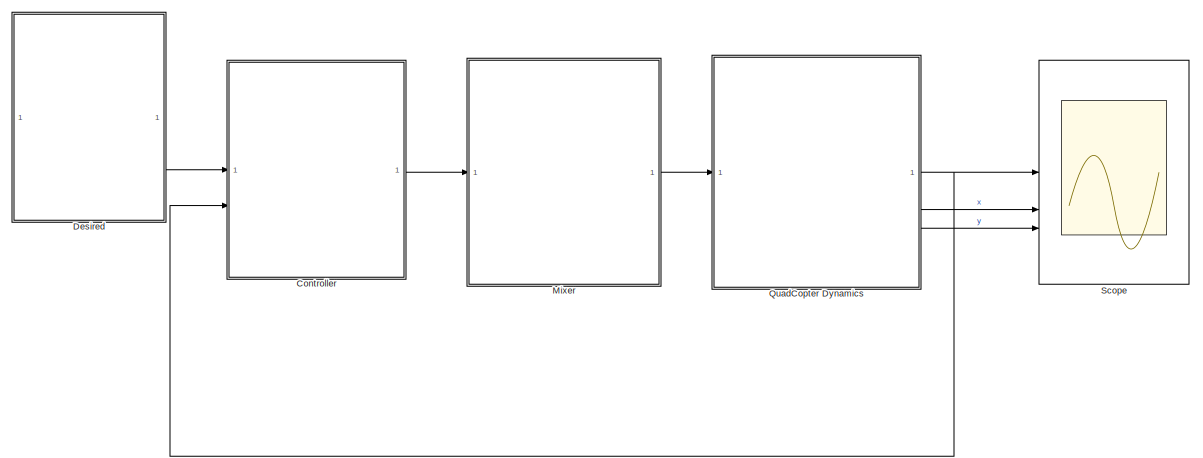
[diagram: root canvas - part 1/2, most of the canvas]
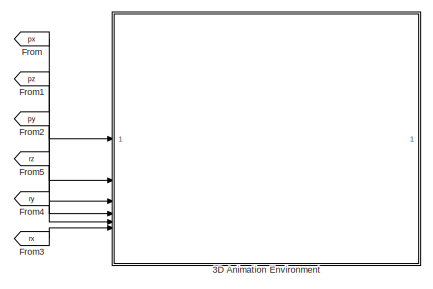
[diagram: root canvas - part 2/2, middle right region]
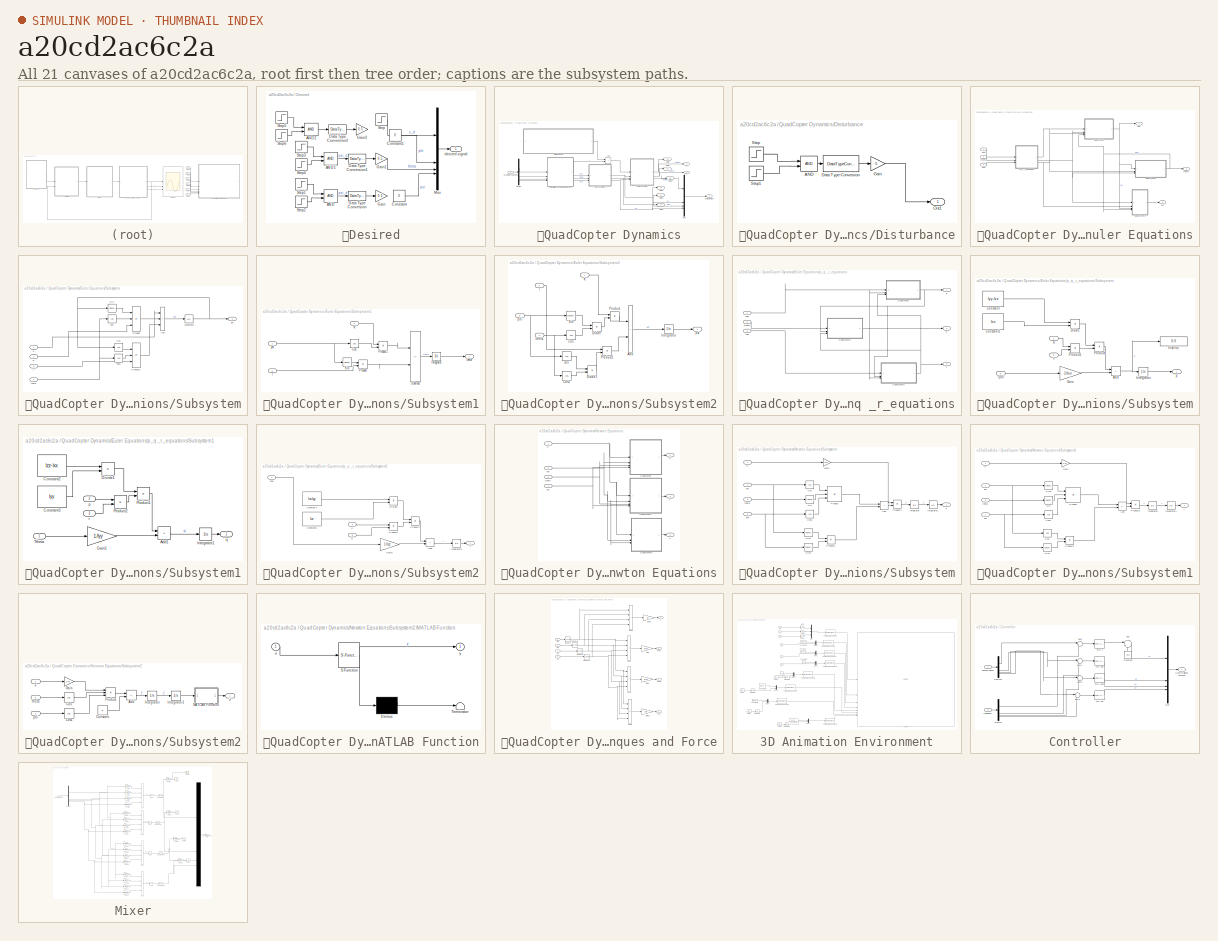
[diagram: thumbnail index - all 21 canvases of the model, root first then tree order]
MODEL slx_a20cd2ac6c2a
KIND model
CONFIG AbsTol = 1e-6
CONFIG EnableMultiTasking = off
CONFIG FixedStep = auto
CONFIG MaxStep = auto
CONFIG MinStep = auto
CONFIG RelTol = 1e-6
CONFIG SampleTimeConstraint = Unconstrained
CONFIG SolverName = ode23t
CONFIG StartTime = 0
CONFIG StopTime = 25
BLOCK [SubSystem] 	Desired
BLOCK [Logic] 	Desired/AND
  AllPortsSameDT = off
  Commented = on
  IconShape = distinctive
  OutDataTypeStr = boolean
BLOCK [Logic] 	Desired/AND1
  AllPortsSameDT = off
  IconShape = distinctive
  OutDataTypeStr = boolean
BLOCK [Logic] 	Desired/AND2
  AllPortsSameDT = off
  IconShape = distinctive
  OutDataTypeStr = boolean
BLOCK [Constant] 	Desired/Constant
  Value = 0
BLOCK [Constant] 	Desired/Constant1
  Value = 0
BLOCK [DataTypeConversion] 	Desired/Data Type Conversion
  Commented = on
  RndMeth = Floor
  SaturateOnIntegerOverflow = off
BLOCK [DataTypeConversion] 	Desired/Data Type Conversion1
  RndMeth = Floor
  SaturateOnIntegerOverflow = off
BLOCK [DataTypeConversion] 	Desired/Data Type Conversion2
  RndMeth = Floor
  SaturateOnIntegerOverflow = off
BLOCK [Gain] 	Desired/Gain
  Commented = on
  Gain = 0.5
BLOCK [Gain] 	Desired/Gain1
  Gain = 0.5
BLOCK [Gain] 	Desired/Gain2
  Gain = 0.5
BLOCK [Mux] 	Desired/Mux
  DisplayOption = bar
BLOCK [Step] 	Desired/Step
  After = -5
  SampleTime = 0
  Time = 0
BLOCK [Step] 	Desired/Step1
  Commented = on
  SampleTime = 0
  Time = 4
BLOCK [Step] 	Desired/Step2
  After = 0
  Before = 1
  Commented = on
  SampleTime = 0
  Time = 8
BLOCK [Step] 	Desired/Step3
  SampleTime = 0
  Time = 8
BLOCK [Step] 	Desired/Step4
  After = 0
  Before = 1
  SampleTime = 0
  Time = 9
BLOCK [Step] 	Desired/Step5
  SampleTime = 0
  Time = 10
BLOCK [Step] 	Desired/Step6
  After = 0
  Before = 1
  SampleTime = 0
  Time = 11
BLOCK [Outport] 	Desired/desired signal
BLOCK [SubSystem] 	QuadCopter Dynamics
BLOCK [Sum] 	QuadCopter Dynamics/Add
  IconShape = rectangular
BLOCK [Demux] 	QuadCopter Dynamics/Demux
BLOCK [SubSystem] 	QuadCopter Dynamics/Disturbance
BLOCK [Logic] 	QuadCopter Dynamics/Disturbance/AND
  AllPortsSameDT = off
  IconShape = distinctive
  OutDataTypeStr = boolean
BLOCK [DataTypeConversion] 	QuadCopter Dynamics/Disturbance/Data Type Conversion
  RndMeth = Floor
  SaturateOnIntegerOverflow = off
BLOCK [Gain] 	QuadCopter Dynamics/Disturbance/Gain
  Gain = 5
BLOCK [Outport] 	QuadCopter Dynamics/Disturbance/Out1
BLOCK [Step] 	QuadCopter Dynamics/Disturbance/Step
  SampleTime = 0
  Time = 10
BLOCK [Step] 	QuadCopter Dynamics/Disturbance/Step1
  After = 0
  Before = 1
  SampleTime = 0
  Time = 11
BLOCK [SubSystem] 	QuadCopter Dynamics/Euler Equations
BLOCK [SubSystem] 	QuadCopter Dynamics/Euler Equations/Subsystem
BLOCK [Sum] 	QuadCopter Dynamics/Euler Equations/Subsystem/Add
  IconShape = rectangular
  Inputs = +++
BLOCK [Trigonometry] 	QuadCopter Dynamics/Euler Equations/Subsystem/Cos
  Operator = cos
BLOCK [Integrator] 	QuadCopter Dynamics/Euler Equations/Subsystem/Integrator
BLOCK [Product] 	QuadCopter Dynamics/Euler Equations/Subsystem/Product
  Inputs = 3
BLOCK [Product] 	QuadCopter Dynamics/Euler Equations/Subsystem/Product1
  Inputs = 3
BLOCK [Trigonometry] 	QuadCopter Dynamics/Euler Equations/Subsystem/Sin
BLOCK [Trigonometry] 	QuadCopter Dynamics/Euler Equations/Subsystem/Tan
  Operator = tan
BLOCK [Trigonometry] 	QuadCopter Dynamics/Euler Equations/Subsystem/Tan1
  Operator = tan
BLOCK [Inport] 	QuadCopter Dynamics/Euler Equations/Subsystem/p
BLOCK [Outport] 	QuadCopter Dynamics/Euler Equations/Subsystem/phi
BLOCK [Inport] 	QuadCopter Dynamics/Euler Equations/Subsystem/q
  Port = 2
BLOCK [Inport] 	QuadCopter Dynamics/Euler Equations/Subsystem/r
  Port = 3
BLOCK [Inport] 	QuadCopter Dynamics/Euler Equations/Subsystem/theta
  Port = 4
BLOCK [SubSystem] 	QuadCopter Dynamics/Euler Equations/Subsystem1
BLOCK [Trigonometry] 	QuadCopter Dynamics/Euler Equations/Subsystem1/Cos
  Operator = cos
BLOCK [Integrator] 	QuadCopter Dynamics/Euler Equations/Subsystem1/Integrator
BLOCK [Product] 	QuadCopter Dynamics/Euler Equations/Subsystem1/Product
BLOCK [Product] 	QuadCopter Dynamics/Euler Equations/Subsystem1/Product1
BLOCK [Trigonometry] 	QuadCopter Dynamics/Euler Equations/Subsystem1/Sin
BLOCK [Sum] 	QuadCopter Dynamics/Euler Equations/Subsystem1/Subtract
  IconShape = rectangular
  Inputs = +-
BLOCK [Inport] 	QuadCopter Dynamics/Euler Equations/Subsystem1/phi
BLOCK [Inport] 	QuadCopter Dynamics/Euler Equations/Subsystem1/q
  Port = 3
BLOCK [Inport] 	QuadCopter Dynamics/Euler Equations/Subsystem1/r
  Port = 2
BLOCK [Outport] 	QuadCopter Dynamics/Euler Equations/Subsystem1/theta
BLOCK [SubSystem] 	QuadCopter Dynamics/Euler Equations/Subsystem2
BLOCK [Sum] 	QuadCopter Dynamics/Euler Equations/Subsystem2/Add
  IconShape = rectangular
BLOCK [Trigonometry] 	QuadCopter Dynamics/Euler Equations/Subsystem2/Cos
  Operator = cos
BLOCK [Trigonometry] 	QuadCopter Dynamics/Euler Equations/Subsystem2/Cos1
  Operator = cos
BLOCK [Product] 	QuadCopter Dynamics/Euler Equations/Subsystem2/Divide
  Inputs = */
BLOCK [Product] 	QuadCopter Dynamics/Euler Equations/Subsystem2/Divide1
  Inputs = */
BLOCK [Integrator] 	QuadCopter Dynamics/Euler Equations/Subsystem2/Integrator
BLOCK [Product] 	QuadCopter Dynamics/Euler Equations/Subsystem2/Product
BLOCK [Product] 	QuadCopter Dynamics/Euler Equations/Subsystem2/Product1
BLOCK [Trigonometry] 	QuadCopter Dynamics/Euler Equations/Subsystem2/Sin
BLOCK [Trigonometry] 	QuadCopter Dynamics/Euler Equations/Subsystem2/cos
  Operator = cos
BLOCK [Inport] 	QuadCopter Dynamics/Euler Equations/Subsystem2/phi
  Port = 3
BLOCK [Outport] 	QuadCopter Dynamics/Euler Equations/Subsystem2/psi
BLOCK [Inport] 	QuadCopter Dynamics/Euler Equations/Subsystem2/q
BLOCK [Inport] 	QuadCopter Dynamics/Euler Equations/Subsystem2/r
  Port = 2
BLOCK [Inport] 	QuadCopter Dynamics/Euler Equations/Subsystem2/theta
  Port = 4
BLOCK [Inport] 	QuadCopter Dynamics/Euler Equations/Tphi
BLOCK [Inport] 	QuadCopter Dynamics/Euler Equations/Tpsi
  Port = 3
BLOCK [Inport] 	QuadCopter Dynamics/Euler Equations/Ttheta
  Port = 2
BLOCK [SubSystem] 	QuadCopter Dynamics/Euler Equations/p_q _r_equations
BLOCK [SubSystem] 	QuadCopter Dynamics/Euler Equations/p_q _r_equations/Subsystem
BLOCK [Sum] 	QuadCopter Dynamics/Euler Equations/p_q _r_equations/Subsystem/Add
  IconShape = rectangular
BLOCK [Constant] 	QuadCopter Dynamics/Euler Equations/p_q _r_equations/Subsystem/Constant
  Value = Iyy-Izz
BLOCK [Constant] 	QuadCopter Dynamics/Euler Equations/p_q _r_equations/Subsystem/Constant1
  Value = Ixx
BLOCK [Display] 	QuadCopter Dynamics/Euler Equations/p_q _r_equations/Subsystem/Display
  Decimation = 1
BLOCK [Product] 	QuadCopter Dynamics/Euler Equations/p_q _r_equations/Subsystem/Divide
  Inputs = */
BLOCK [Gain] 	QuadCopter Dynamics/Euler Equations/p_q _r_equations/Subsystem/Gain
  Gain = 1/Ixx
BLOCK [Integrator] 	QuadCopter Dynamics/Euler Equations/p_q _r_equations/Subsystem/Integrator
  AbsoluteTolerance = 1e-3
BLOCK [Product] 	QuadCopter Dynamics/Euler Equations/p_q _r_equations/Subsystem/Product
BLOCK [Product] 	QuadCopter Dynamics/Euler Equations/p_q _r_equations/Subsystem/Product1
BLOCK [Inport] 	QuadCopter Dynamics/Euler Equations/p_q _r_equations/Subsystem/Tphi
BLOCK [Outport] 	QuadCopter Dynamics/Euler Equations/p_q _r_equations/Subsystem/p
BLOCK [Inport] 	QuadCopter Dynamics/Euler Equations/p_q _r_equations/Subsystem/q
  Port = 2
BLOCK [Inport] 	QuadCopter Dynamics/Euler Equations/p_q _r_equations/Subsystem/r
  Port = 3
BLOCK [SubSystem] 	QuadCopter Dynamics/Euler Equations/p_q _r_equations/Subsystem1
BLOCK [Sum] 	QuadCopter Dynamics/Euler Equations/p_q _r_equations/Subsystem1/Add1
  IconShape = rectangular
BLOCK [Constant] 	QuadCopter Dynamics/Euler Equations/p_q _r_equations/Subsystem1/Constant2
  Value = Izz-Ixx
BLOCK [Constant] 	QuadCopter Dynamics/Euler Equations/p_q _r_equations/Subsystem1/Constant3
  Value = Iyy
BLOCK [Product] 	QuadCopter Dynamics/Euler Equations/p_q _r_equations/Subsystem1/Divide1
  Inputs = */
BLOCK [Gain] 	QuadCopter Dynamics/Euler Equations/p_q _r_equations/Subsystem1/Gain1
  Gain = 1/Iyy
BLOCK [Integrator] 	QuadCopter Dynamics/Euler Equations/p_q _r_equations/Subsystem1/Integrator1
BLOCK [Product] 	QuadCopter Dynamics/Euler Equations/p_q _r_equations/Subsystem1/Product1
BLOCK [Product] 	QuadCopter Dynamics/Euler Equations/p_q _r_equations/Subsystem1/Product2
BLOCK [Inport] 	QuadCopter Dynamics/Euler Equations/p_q _r_equations/Subsystem1/Ttheta
BLOCK [Inport] 	QuadCopter Dynamics/Euler Equations/p_q _r_equations/Subsystem1/p
  Port = 2
BLOCK [Outport] 	QuadCopter Dynamics/Euler Equations/p_q _r_equations/Subsystem1/q
BLOCK [Inport] 	QuadCopter Dynamics/Euler Equations/p_q _r_equations/Subsystem1/r
  Port = 3
BLOCK [SubSystem] 	QuadCopter Dynamics/Euler Equations/p_q _r_equations/Subsystem2
BLOCK [Sum] 	QuadCopter Dynamics/Euler Equations/p_q _r_equations/Subsystem2/Add2
  IconShape = rectangular
BLOCK [Constant] 	QuadCopter Dynamics/Euler Equations/p_q _r_equations/Subsystem2/Constant4
  Value = Ixx-Iyy
BLOCK [Constant] 	QuadCopter Dynamics/Euler Equations/p_q _r_equations/Subsystem2/Constant5
  Value = Izz
BLOCK [Product] 	QuadCopter Dynamics/Euler Equations/p_q _r_equations/Subsystem2/Divide2
  Inputs = */
BLOCK [Gain] 	QuadCopter Dynamics/Euler Equations/p_q _r_equations/Subsystem2/Gain2
  Gain = 1/Izz
BLOCK [Integrator] 	QuadCopter Dynamics/Euler Equations/p_q _r_equations/Subsystem2/Integrator2
BLOCK [Product] 	QuadCopter Dynamics/Euler Equations/p_q _r_equations/Subsystem2/Product1
BLOCK [Product] 	QuadCopter Dynamics/Euler Equations/p_q _r_equations/Subsystem2/Product2
BLOCK [Inport] 	QuadCopter Dynamics/Euler Equations/p_q _r_equations/Subsystem2/Tpsi
BLOCK [Inport] 	QuadCopter Dynamics/Euler Equations/p_q _r_equations/Subsystem2/p
  Port = 2
BLOCK [Inport] 	QuadCopter Dynamics/Euler Equations/p_q _r_equations/Subsystem2/q
  Port = 3
BLOCK [Outport] 	QuadCopter Dynamics/Euler Equations/p_q _r_equations/Subsystem2/r
BLOCK [Inport] 	QuadCopter Dynamics/Euler Equations/p_q _r_equations/Tphi
BLOCK [Inport] 	QuadCopter Dynamics/Euler Equations/p_q _r_equations/Tpsi
  Port = 3
BLOCK [Inport] 	QuadCopter Dynamics/Euler Equations/p_q _r_equations/Ttheta
  Port = 2
BLOCK [Outport] 	QuadCopter Dynamics/Euler Equations/p_q _r_equations/p
BLOCK [Outport] 	QuadCopter Dynamics/Euler Equations/p_q _r_equations/q
  Port = 2
BLOCK [Outport] 	QuadCopter Dynamics/Euler Equations/p_q _r_equations/r
  Port = 3
BLOCK [Outport] 	QuadCopter Dynamics/Euler Equations/phi
BLOCK [Outport] 	QuadCopter Dynamics/Euler Equations/psi
  Port = 3
BLOCK [Outport] 	QuadCopter Dynamics/Euler Equations/theta
  Port = 2
BLOCK [Goto] 	QuadCopter Dynamics/Goto
  GotoTag = px
  TagVisibility = global
BLOCK [Goto] 	QuadCopter Dynamics/Goto1
  GotoTag = py
  TagVisibility = global
BLOCK [Goto] 	QuadCopter Dynamics/Goto2
  GotoTag = pz
  TagVisibility = global
BLOCK [Goto] 	QuadCopter Dynamics/Goto3
  GotoTag = rx
  TagVisibility = global
BLOCK [Goto] 	QuadCopter Dynamics/Goto4
  GotoTag = ry
  TagVisibility = global
BLOCK [Goto] 	QuadCopter Dynamics/Goto5
  GotoTag = rz
  TagVisibility = global
BLOCK [Mux] 	QuadCopter Dynamics/Mux
  DisplayOption = bar
BLOCK [SubSystem] 	QuadCopter Dynamics/Newton Equations
BLOCK [Inport] 	QuadCopter Dynamics/Newton Equations/F
BLOCK [SubSystem] 	QuadCopter Dynamics/Newton Equations/Subsystem
BLOCK [Sum] 	QuadCopter Dynamics/Newton Equations/Subsystem/Add
  IconShape = rectangular
BLOCK [Trigonometry] 	QuadCopter Dynamics/Newton Equations/Subsystem/Cos
  Operator = cos
BLOCK [Trigonometry] 	QuadCopter Dynamics/Newton Equations/Subsystem/Cos1
  Operator = cos
BLOCK [Inport] 	QuadCopter Dynamics/Newton Equations/Subsystem/F
BLOCK [Gain] 	QuadCopter Dynamics/Newton Equations/Subsystem/Gain
  Gain = 1/m
BLOCK [Integrator] 	QuadCopter Dynamics/Newton Equations/Subsystem/Integrator
BLOCK [Integrator] 	QuadCopter Dynamics/Newton Equations/Subsystem/Integrator1
BLOCK [Product] 	QuadCopter Dynamics/Newton Equations/Subsystem/Product
  Inputs = 3
BLOCK [Product] 	QuadCopter Dynamics/Newton Equations/Subsystem/Product1
BLOCK [Product] 	QuadCopter Dynamics/Newton Equations/Subsystem/Product2
BLOCK [Trigonometry] 	QuadCopter Dynamics/Newton Equations/Subsystem/Sin
BLOCK [Trigonometry] 	QuadCopter Dynamics/Newton Equations/Subsystem/Sin1
BLOCK [Trigonometry] 	QuadCopter Dynamics/Newton Equations/Subsystem/Sin2
BLOCK [Inport] 	QuadCopter Dynamics/Newton Equations/Subsystem/phi
  Port = 2
BLOCK [Inport] 	QuadCopter Dynamics/Newton Equations/Subsystem/psi
  Port = 4
BLOCK [Inport] 	QuadCopter Dynamics/Newton Equations/Subsystem/theta
  Port = 3
BLOCK [Outport] 	QuadCopter Dynamics/Newton Equations/Subsystem/x
BLOCK [SubSystem] 	QuadCopter Dynamics/Newton Equations/Subsystem1
BLOCK [Sum] 	QuadCopter Dynamics/Newton Equations/Subsystem1/Add
  IconShape = rectangular
  Inputs = +-
BLOCK [Trigonometry] 	QuadCopter Dynamics/Newton Equations/Subsystem1/Cos
  Operator = cos
BLOCK [Trigonometry] 	QuadCopter Dynamics/Newton Equations/Subsystem1/Cos1
  Operator = cos
BLOCK [Inport] 	QuadCopter Dynamics/Newton Equations/Subsystem1/F
BLOCK [Gain] 	QuadCopter Dynamics/Newton Equations/Subsystem1/Gain
  Gain = 1/m
BLOCK [Integrator] 	QuadCopter Dynamics/Newton Equations/Subsystem1/Integrator
BLOCK [Integrator] 	QuadCopter Dynamics/Newton Equations/Subsystem1/Integrator1
BLOCK [Product] 	QuadCopter Dynamics/Newton Equations/Subsystem1/Product
  Inputs = 3
BLOCK [Product] 	QuadCopter Dynamics/Newton Equations/Subsystem1/Product1
BLOCK [Product] 	QuadCopter Dynamics/Newton Equations/Subsystem1/Product2
BLOCK [Trigonometry] 	QuadCopter Dynamics/Newton Equations/Subsystem1/Sin
BLOCK [Trigonometry] 	QuadCopter Dynamics/Newton Equations/Subsystem1/Sin2
BLOCK [Trigonometry] 	QuadCopter Dynamics/Newton Equations/Subsystem1/Sin3
BLOCK [Inport] 	QuadCopter Dynamics/Newton Equations/Subsystem1/phi
  Port = 2
BLOCK [Inport] 	QuadCopter Dynamics/Newton Equations/Subsystem1/psi
  Port = 4
BLOCK [Inport] 	QuadCopter Dynamics/Newton Equations/Subsystem1/theta
  Port = 3
BLOCK [Outport] 	QuadCopter Dynamics/Newton Equations/Subsystem1/y
BLOCK [SubSystem] 	QuadCopter Dynamics/Newton Equations/Subsystem2
BLOCK [Sum] 	QuadCopter Dynamics/Newton Equations/Subsystem2/Add
  IconShape = rectangular
  Inputs = +-
BLOCK [Constant] 	QuadCopter Dynamics/Newton Equations/Subsystem2/Constant
  Value = g
BLOCK [Trigonometry] 	QuadCopter Dynamics/Newton Equations/Subsystem2/Cos
  Operator = cos
BLOCK [Trigonometry] 	QuadCopter Dynamics/Newton Equations/Subsystem2/Cos1
  Operator = cos
BLOCK [Inport] 	QuadCopter Dynamics/Newton Equations/Subsystem2/F
BLOCK [Gain] 	QuadCopter Dynamics/Newton Equations/Subsystem2/Gain
  Gain = 1/m
BLOCK [Integrator] 	QuadCopter Dynamics/Newton Equations/Subsystem2/Integrator
BLOCK [Integrator] 	QuadCopter Dynamics/Newton Equations/Subsystem2/Integrator1
BLOCK [SubSystem] 	QuadCopter Dynamics/Newton Equations/Subsystem2/MATLAB Function
  ErrorFcn = Stateflow.Translate.translate
  PermitHierarchicalResolution = ExplicitOnly
  SFBlockType = MATLAB Function
  TreatAsAtomicUnit = on
BLOCK [Demux] 	QuadCopter Dynamics/Newton Equations/Subsystem2/MATLAB Function/ Demux 
  Outputs = 1
BLOCK [S-Function] 	QuadCopter Dynamics/Newton Equations/Subsystem2/MATLAB Function/ SFunction 
  EnableBusSupport = on
  FunctionName = sf_sfun
  PortCounts = [1 2]
  SFcnIsStateOwnerBlock = off
  SFunctionDeploymentMode = off
  Tag = Stateflow S-Function 2
BLOCK [Terminator] 	QuadCopter Dynamics/Newton Equations/Subsystem2/MATLAB Function/ Terminator 
BLOCK [Inport] 	QuadCopter Dynamics/Newton Equations/Subsystem2/MATLAB Function/u
BLOCK [Outport] 	QuadCopter Dynamics/Newton Equations/Subsystem2/MATLAB Function/y
BLOCK [Product] 	QuadCopter Dynamics/Newton Equations/Subsystem2/Product
  Inputs = 3
BLOCK [Inport] 	QuadCopter Dynamics/Newton Equations/Subsystem2/phi
  Port = 2
BLOCK [Inport] 	QuadCopter Dynamics/Newton Equations/Subsystem2/theta
  Port = 3
BLOCK [Outport] 	QuadCopter Dynamics/Newton Equations/Subsystem2/z
BLOCK [Inport] 	QuadCopter Dynamics/Newton Equations/phi
  Port = 2
BLOCK [Inport] 	QuadCopter Dynamics/Newton Equations/psi
  Port = 4
BLOCK [Inport] 	QuadCopter Dynamics/Newton Equations/theta
  Port = 3
BLOCK [Outport] 	QuadCopter Dynamics/Newton Equations/x
BLOCK [Outport] 	QuadCopter Dynamics/Newton Equations/y
  Port = 2
BLOCK [Outport] 	QuadCopter Dynamics/Newton Equations/z
  Port = 3
BLOCK [Outport] 	QuadCopter Dynamics/actual output
BLOCK [SubSystem] 	QuadCopter Dynamics/calculating Torques and Force
BLOCK [Outport] 	QuadCopter Dynamics/calculating Torques and Force/F
BLOCK [Gain] 	QuadCopter Dynamics/calculating Torques and Force/Gain
  Gain = d*Ct
BLOCK [Gain] 	QuadCopter Dynamics/calculating Torques and Force/Gain1
  Gain = d*Ct
BLOCK [Gain] 	QuadCopter Dynamics/calculating Torques and Force/Gain2
  Gain = Cd
BLOCK [Gain] 	QuadCopter Dynamics/calculating Torques and Force/Gain3
  Gain = Ct
BLOCK [Math] 	QuadCopter Dynamics/calculating Torques and Force/Square
  Operator = square
  SignedPower = on
BLOCK [Math] 	QuadCopter Dynamics/calculating Torques and Force/Square1
  Operator = square
  SignedPower = on
BLOCK [Math] 	QuadCopter Dynamics/calculating Torques and Force/Square2
  Operator = square
  SignedPower = on
BLOCK [Math] 	QuadCopter Dynamics/calculating Torques and Force/Square3
  Operator = square
  SignedPower = on
BLOCK [Sum] 	QuadCopter Dynamics/calculating Torques and Force/Sum
  IconShape = rectangular
  Inputs = +--+
BLOCK [Sum] 	QuadCopter Dynamics/calculating Torques and Force/Sum1
  IconShape = rectangular
  Inputs = ++--
BLOCK [Sum] 	QuadCopter Dynamics/calculating Torques and Force/Sum2
  IconShape = rectangular
  Inputs = +-+-
BLOCK [Sum] 	QuadCopter Dynamics/calculating Torques and Force/Sum3
  IconShape = rectangular
  Inputs = ++++
BLOCK [Outport] 	QuadCopter Dynamics/calculating Torques and Force/Tiheta
  Port = 3
BLOCK [Outport] 	QuadCopter Dynamics/calculating Torques and Force/Tphi
  Port = 2
BLOCK [Outport] 	QuadCopter Dynamics/calculating Torques and Force/Tpsi
  Port = 4
BLOCK [Inport] 	QuadCopter Dynamics/calculating Torques and Force/w1
BLOCK [Inport] 	QuadCopter Dynamics/calculating Torques and Force/w2
  Port = 2
BLOCK [Inport] 	QuadCopter Dynamics/calculating Torques and Force/w3
  Port = 3
BLOCK [Inport] 	QuadCopter Dynamics/calculating Torques and Force/w4
  Port = 4
BLOCK [Inport] 	QuadCopter Dynamics/propeller's speede
BLOCK [Outport] 	QuadCopter Dynamics/x
  Port = 2
BLOCK [Outport] 	QuadCopter Dynamics/y
  Port = 3
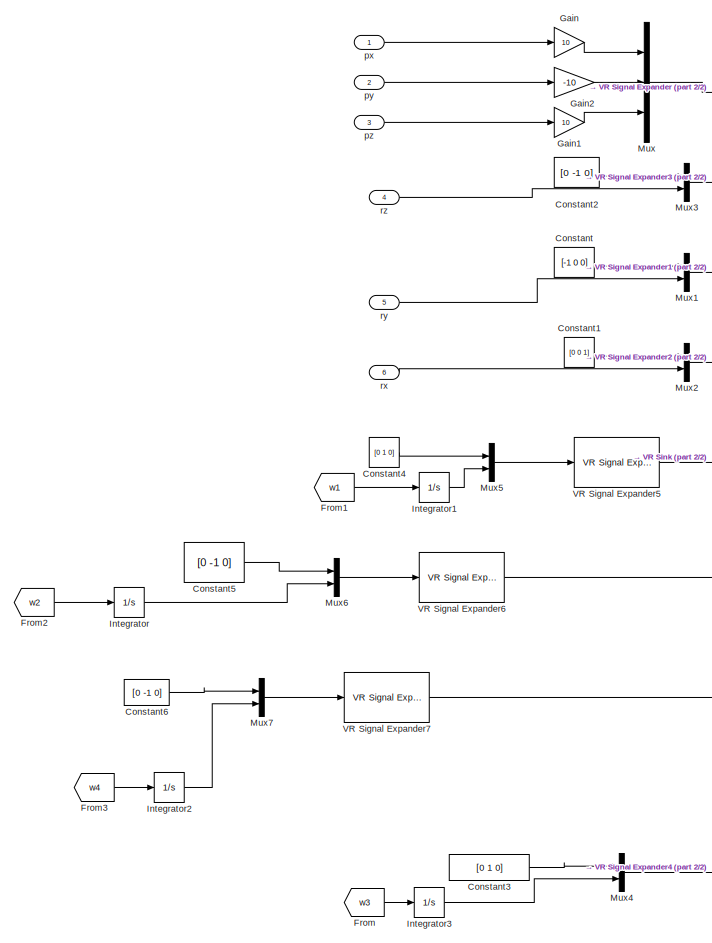
[diagram: 3D Animation Environment - part 1/2, left side, full height]
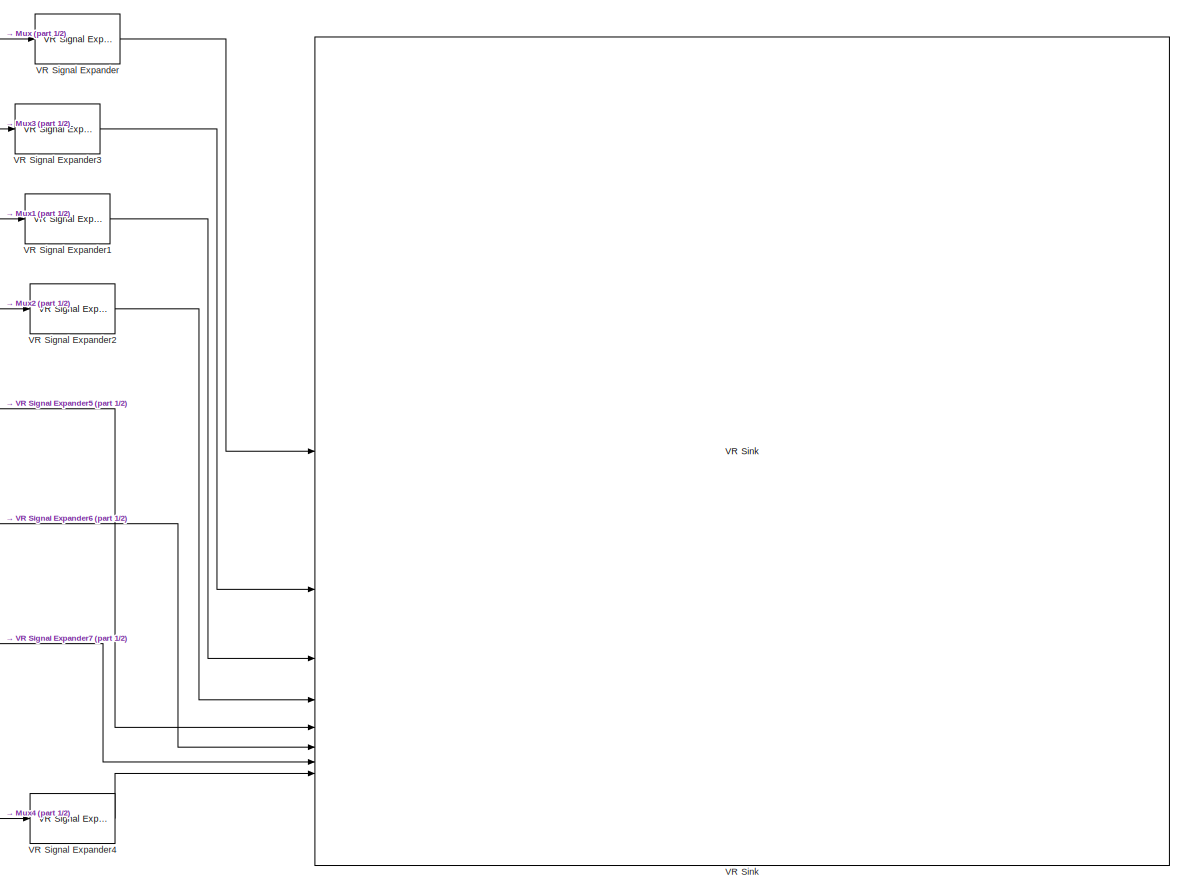
[diagram: 3D Animation Environment - part 2/2, right side, full height]
BLOCK [SubSystem] 3D Animation Environment
BLOCK [Constant] 3D Animation Environment/Constant
  Value = [-1 0 0]
BLOCK [Constant] 3D Animation Environment/Constant1
  Value = [0 0 1]
BLOCK [Constant] 3D Animation Environment/Constant2
  Value = [0 -1 0]
BLOCK [Constant] 3D Animation Environment/Constant3
  Value = [0 1 0]
BLOCK [Constant] 3D Animation Environment/Constant4
  Value = [0 1 0]
BLOCK [Constant] 3D Animation Environment/Constant5
  Value = [0 -1 0]
BLOCK [Constant] 3D Animation Environment/Constant6
  Value = [0 -1 0]
BLOCK [From] 3D Animation Environment/From
  GotoTag = w3
  TagVisibility = global
BLOCK [From] 3D Animation Environment/From1
  GotoTag = w1
  TagVisibility = global
BLOCK [From] 3D Animation Environment/From2
  GotoTag = w2
  TagVisibility = global
BLOCK [From] 3D Animation Environment/From3
  GotoTag = w4
  TagVisibility = global
BLOCK [Gain] 3D Animation Environment/Gain
  Gain = 10
BLOCK [Gain] 3D Animation Environment/Gain1
  Gain = 10
BLOCK [Gain] 3D Animation Environment/Gain2
  Gain = -10
BLOCK [Integrator] 3D Animation Environment/Integrator
BLOCK [Integrator] 3D Animation Environment/Integrator1
BLOCK [Integrator] 3D Animation Environment/Integrator2
BLOCK [Integrator] 3D Animation Environment/Integrator3
BLOCK [Mux] 3D Animation Environment/Mux
  DisplayOption = bar
  Inputs = 3
BLOCK [Mux] 3D Animation Environment/Mux1
  DisplayOption = bar
  Inputs = 2
BLOCK [Mux] 3D Animation Environment/Mux2
  DisplayOption = bar
  Inputs = 2
BLOCK [Mux] 3D Animation Environment/Mux3
  DisplayOption = bar
  Inputs = 2
BLOCK [Mux] 3D Animation Environment/Mux4
  DisplayOption = bar
  Inputs = 2
BLOCK [Mux] 3D Animation Environment/Mux5
  DisplayOption = bar
  Inputs = 2
BLOCK [Mux] 3D Animation Environment/Mux6
  DisplayOption = bar
  Inputs = 2
BLOCK [Mux] 3D Animation Environment/Mux7
  DisplayOption = bar
  Inputs = 2
BLOCK [Reference] 3D Animation Environment/VR Signal Expander  REF=vrlib/VR Signal Expander
  SourceBlock = vrlib/VR Signal Expander
  SourceType = VR Signal Expander
BLOCK [Reference] 3D Animation Environment/VR Signal Expander1  REF=vrlib/VR Signal Expander
  SourceBlock = vrlib/VR Signal Expander
  SourceType = VR Signal Expander
BLOCK [Reference] 3D Animation Environment/VR Signal Expander2  REF=vrlib/VR Signal Expander
  SourceBlock = vrlib/VR Signal Expander
  SourceType = VR Signal Expander
BLOCK [Reference] 3D Animation Environment/VR Signal Expander3  REF=vrlib/VR Signal Expander
  SourceBlock = vrlib/VR Signal Expander
  SourceType = VR Signal Expander
BLOCK [Reference] 3D Animation Environment/VR Signal Expander4  REF=vrlib/VR Signal Expander
  SourceBlock = vrlib/VR Signal Expander
  SourceType = VR Signal Expander
BLOCK [Reference] 3D Animation Environment/VR Signal Expander5  REF=vrlib/VR Signal Expander
  SourceBlock = vrlib/VR Signal Expander
  SourceType = VR Signal Expander
BLOCK [Reference] 3D Animation Environment/VR Signal Expander6  REF=vrlib/VR Signal Expander
  SourceBlock = vrlib/VR Signal Expander
  SourceType = VR Signal Expander
BLOCK [Reference] 3D Animation Environment/VR Signal Expander7  REF=vrlib/VR Signal Expander
  SourceBlock = vrlib/VR Signal Expander
  SourceType = VR Signal Expander
BLOCK [Reference] 3D Animation Environment/VR Sink  REF=vrlib/VR Sink
  InstantiateOnLoad = on
  SourceBlock = vrlib/VR Sink
  SourceType = Virtual Reality Sink
BLOCK [Inport] 3D Animation Environment/px
BLOCK [Inport] 3D Animation Environment/py
  Port = 2
BLOCK [Inport] 3D Animation Environment/pz
  Port = 3
BLOCK [Inport] 3D Animation Environment/rx
  Port = 6
BLOCK [Inport] 3D Animation Environment/ry
  Port = 5
BLOCK [Inport] 3D Animation Environment/rz
  Port = 4
BLOCK [SubSystem] Controller
BLOCK [Sum] Controller/Add
  Inputs = |++
BLOCK [Constant] Controller/Constant
  NameLocation = right
  Value = m*g
BLOCK [Outport] Controller/Control Signal (Forces)
BLOCK [Demux] Controller/Demux
BLOCK [Demux] Controller/Demux1
BLOCK [Mux] Controller/Mux
  DisplayOption = bar
BLOCK [Reference] Controller/PID phi  REF=slpidlib/PID Controller
  SourceBlock = slpidlib/PID Controller
  SourceType = PID 1dof
BLOCK [Reference] Controller/PID psi  REF=slpidlib/PID Controller
  SourceBlock = slpidlib/PID Controller
  SourceType = PID 1dof
BLOCK [Reference] Controller/PID theta  REF=slpidlib/PID Controller
  SourceBlock = slpidlib/PID Controller
  SourceType = PID 1dof
BLOCK [Reference] Controller/PID z  REF=slpidlib/PID Controller
  SourceBlock = slpidlib/PID Controller
  SourceType = PID 1dof
BLOCK [Sum] Controller/Sum
  Inputs = |+-
BLOCK [Sum] Controller/Sum1
  Inputs = |+-
BLOCK [Sum] Controller/Sum2
  Inputs = |+-
BLOCK [Sum] Controller/Sum3
  Inputs = |+-
BLOCK [Inport] Controller/desired signal
BLOCK [Inport] Controller/feedback
  Port = 2
BLOCK [From] From
  GotoTag = px
  TagVisibility = global
BLOCK [From] From1
  GotoTag = pz
  TagVisibility = global
BLOCK [From] From2
  GotoTag = py
  TagVisibility = global
BLOCK [From] From3
  GotoTag = rx
  TagVisibility = global
BLOCK [From] From4
  GotoTag = ry
  TagVisibility = global
BLOCK [From] From5
  GotoTag = rz
  TagVisibility = global
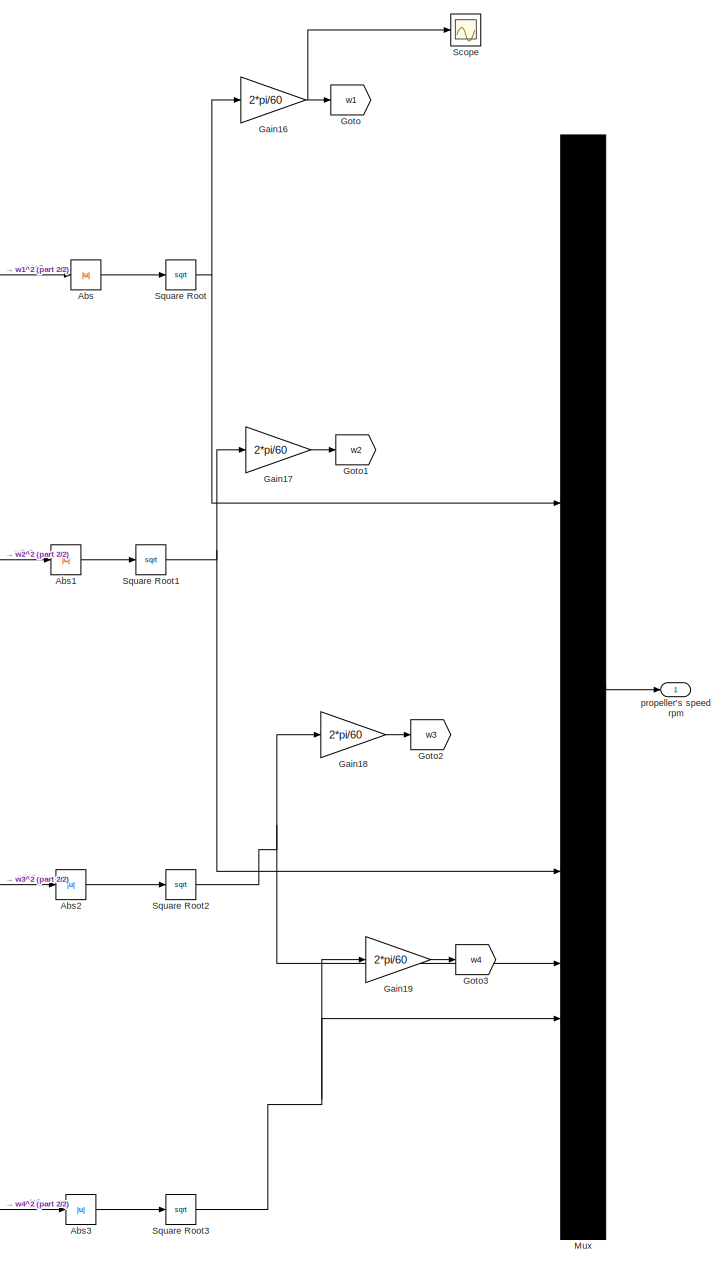
[diagram: Mixer - part 1/2, right side, full height]
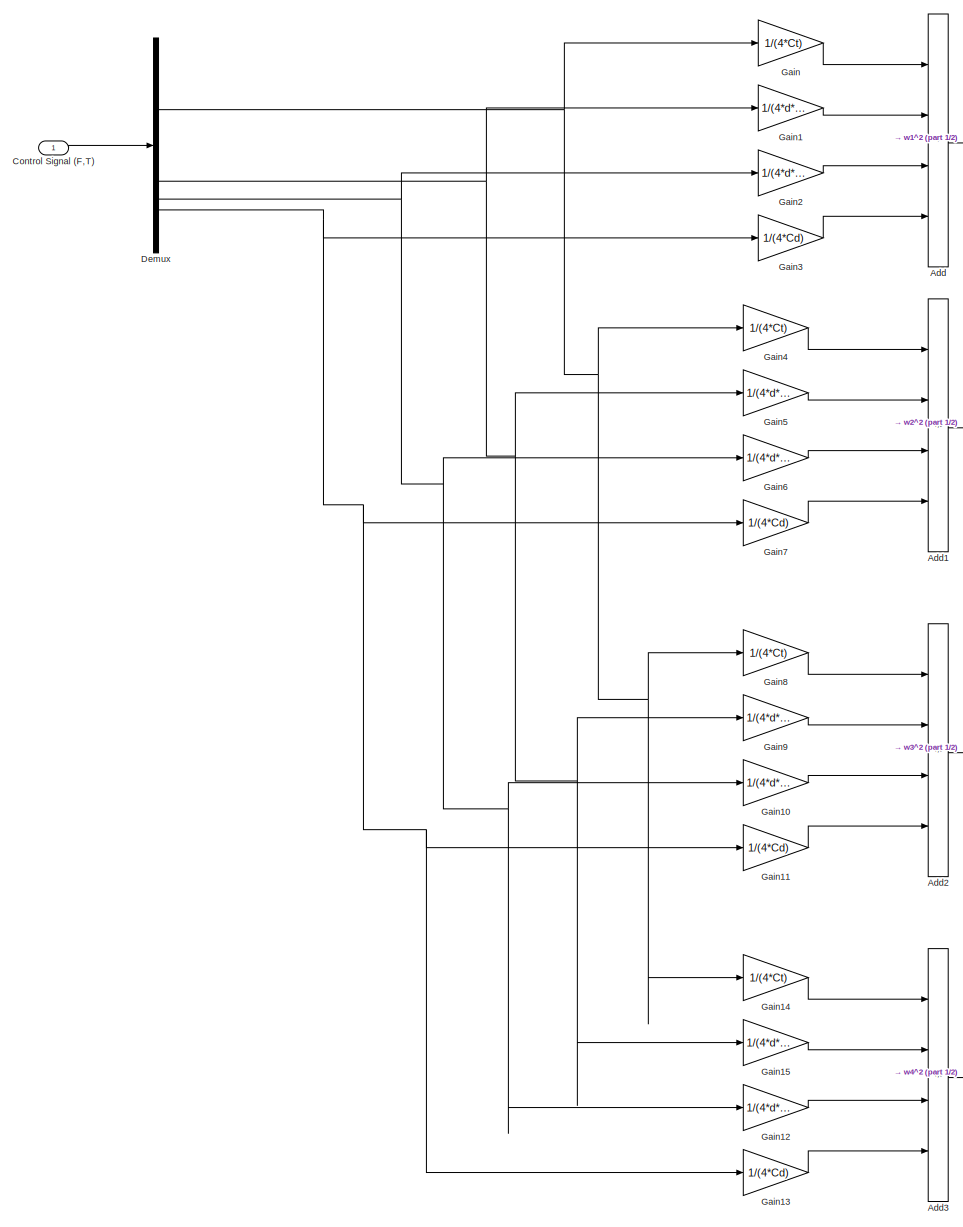
[diagram: Mixer - part 2/2, left side, full height]
BLOCK [SubSystem] Mixer
BLOCK [Abs] Mixer/Abs
  SaturateOnIntegerOverflow = off
BLOCK [Abs] Mixer/Abs1
  SaturateOnIntegerOverflow = off
BLOCK [Abs] Mixer/Abs2
  SaturateOnIntegerOverflow = off
BLOCK [Abs] Mixer/Abs3
  SaturateOnIntegerOverflow = off
BLOCK [Sum] Mixer/Add
  IconShape = rectangular
  Inputs = ++++
BLOCK [Sum] Mixer/Add1
  IconShape = rectangular
  Inputs = +-+-
BLOCK [Sum] Mixer/Add2
  IconShape = rectangular
  Inputs = +--+
BLOCK [Sum] Mixer/Add3
  IconShape = rectangular
  Inputs = ++--
BLOCK [Inport] Mixer/Control Signal (F,T)
BLOCK [Demux] Mixer/Demux
BLOCK [Gain] Mixer/Gain
  Gain = 1/(4*Ct)
BLOCK [Gain] Mixer/Gain1
  Gain = 1/(4*d*Ct)
BLOCK [Gain] Mixer/Gain10
  Gain = 1/(4*d*Ct)
BLOCK [Gain] Mixer/Gain11
  Gain = 1/(4*Cd)
BLOCK [Gain] Mixer/Gain12
  Gain = 1/(4*d*Ct)
BLOCK [Gain] Mixer/Gain13
  Gain = 1/(4*Cd)
BLOCK [Gain] Mixer/Gain14
  Gain = 1/(4*Ct)
BLOCK [Gain] Mixer/Gain15
  Gain = 1/(4*d*Ct)
BLOCK [Gain] Mixer/Gain16
  Gain = 2*pi/60
BLOCK [Gain] Mixer/Gain17
  Gain = 2*pi/60
BLOCK [Gain] Mixer/Gain18
  Gain = 2*pi/60
BLOCK [Gain] Mixer/Gain19
  Gain = 2*pi/60
BLOCK [Gain] Mixer/Gain2
  Gain = 1/(4*d*Ct)
BLOCK [Gain] Mixer/Gain3
  Gain = 1/(4*Cd)
BLOCK [Gain] Mixer/Gain4
  Gain = 1/(4*Ct)
BLOCK [Gain] Mixer/Gain5
  Gain = 1/(4*d*Ct)
BLOCK [Gain] Mixer/Gain6
  Gain = 1/(4*d*Ct)
BLOCK [Gain] Mixer/Gain7
  Gain = 1/(4*Cd)
BLOCK [Gain] Mixer/Gain8
  Gain = 1/(4*Ct)
BLOCK [Gain] Mixer/Gain9
  Gain = 1/(4*d*Ct)
BLOCK [Goto] Mixer/Goto
  GotoTag = w1
  TagVisibility = global
BLOCK [Goto] Mixer/Goto1
  GotoTag = w2
  TagVisibility = global
BLOCK [Goto] Mixer/Goto2
  GotoTag = w3
  TagVisibility = global
BLOCK [Goto] Mixer/Goto3
  GotoTag = w4
  TagVisibility = global
BLOCK [Mux] Mixer/Mux
  DisplayOption = bar
BLOCK [Scope] Mixer/Scope
  Floating = off
  NumInputPorts = 1
  ScopeSpecificationString = Simulink.scopes.TimeScopeBlockCfg('CurrentConfiguration', extmgr.ConfigurationSet(extmgr.Configuration('Core','General UI',true),extmgr.Configuration('Core','Source UI',true),extmgr.Configuration('Sources','WiredSimulink',true,'DataLoggingVariableName','ScopeData1'),extmgr.Configuration('Visuals','Time Domain',true,'SerializedDisplays',{struct('MinYLimReal','-698.73986','MaxYLimReal','6288.65905',...<+1503ch>
BLOCK [Sqrt] Mixer/Square Root
BLOCK [Sqrt] Mixer/Square Root1
BLOCK [Sqrt] Mixer/Square Root2
BLOCK [Sqrt] Mixer/Square Root3
BLOCK [Outport] Mixer/propeller's speed rpm
BLOCK [Scope] Scope
  Floating = off
  NumInputPorts = 3
  ScopeSpecificationString = Simulink.scopes.TimeScopeBlockCfg('CurrentConfiguration', extmgr.ConfigurationSet(extmgr.Configuration('Core','General UI',true),extmgr.Configuration('Core','Source UI',true),extmgr.Configuration('Sources','WiredSimulink',true),extmgr.Configuration('Visuals','Time Domain',true,'SerializedDisplays',{struct('MinYLimReal','-15','MaxYLimReal','2','YLabelReal','','MinYLimMag','0.00000','MaxYLimMag','7....<+1761ch>
LINE 	Desired/AND1:1 -> 	Desired/Data Type Conversion1:1
LINE 	Desired/AND2:1 -> 	Desired/Data Type Conversion2:1
LINE 	Desired/AND:1 -> 	Desired/Data Type Conversion:1
LINE 	Desired/Constant1:1 -> 	Desired/Mux:2
LINE 	Desired/Constant:1 -> 	Desired/Mux:4
LINE 	Desired/Data Type Conversion1:1 -> 	Desired/Gain1:1
LINE 	Desired/Data Type Conversion2:1 -> 	Desired/Gain2:1
LINE 	Desired/Data Type Conversion:1 -> 	Desired/Gain:1
LINE 	Desired/Gain1:1 -> 	Desired/Mux:3
LINE 	Desired/Mux:1 -> 	Desired/desired signal:1
LINE 	Desired/Step1:1 -> 	Desired/AND:1
LINE 	Desired/Step2:1 -> 	Desired/AND:2
LINE 	Desired/Step3:1 -> 	Desired/AND1:1
LINE 	Desired/Step4:1 -> 	Desired/AND1:2
LINE 	Desired/Step5:1 -> 	Desired/AND2:1
LINE 	Desired/Step6:1 -> 	Desired/AND2:2
LINE 	Desired/Step:1 -> 	Desired/Mux:1
LINE 	Desired:1 -> Controller:1
LINE 	QuadCopter Dynamics/Add:1 -> 	QuadCopter Dynamics/Newton Equations:1
LINE 	QuadCopter Dynamics/Demux:1 -> 	QuadCopter Dynamics/calculating Torques and Force:1
LINE 	QuadCopter Dynamics/Demux:2 -> 	QuadCopter Dynamics/calculating Torques and Force:2
LINE 	QuadCopter Dynamics/Demux:3 -> 	QuadCopter Dynamics/calculating Torques and Force:3
LINE 	QuadCopter Dynamics/Demux:4 -> 	QuadCopter Dynamics/calculating Torques and Force:4
LINE 	QuadCopter Dynamics/Disturbance/AND:1 -> 	QuadCopter Dynamics/Disturbance/Data Type Conversion:1
LINE 	QuadCopter Dynamics/Disturbance/Data Type Conversion:1 -> 	QuadCopter Dynamics/Disturbance/Gain:1
LINE 	QuadCopter Dynamics/Disturbance/Gain:1 -> 	QuadCopter Dynamics/Disturbance/Out1:1
LINE 	QuadCopter Dynamics/Disturbance/Step1:1 -> 	QuadCopter Dynamics/Disturbance/AND:2
LINE 	QuadCopter Dynamics/Disturbance/Step:1 -> 	QuadCopter Dynamics/Disturbance/AND:1
LINE 	QuadCopter Dynamics/Disturbance:1 -> 	QuadCopter Dynamics/Add:1
LINE 	QuadCopter Dynamics/Euler Equations/Subsystem/Add:1 -> 	QuadCopter Dynamics/Euler Equations/Subsystem/Integrator:1
LINE 	QuadCopter Dynamics/Euler Equations/Subsystem/Cos:1 -> 	QuadCopter Dynamics/Euler Equations/Subsystem/Product1:1
NET 	QuadCopter Dynamics/Euler Equations/Subsystem/Integrator:1 -> 	QuadCopter Dynamics/Euler Equations/Subsystem/Cos:1, 	QuadCopter Dynamics/Euler Equations/Subsystem/Sin:1, 	QuadCopter Dynamics/Euler Equations/Subsystem/phi:1
LINE 	QuadCopter Dynamics/Euler Equations/Subsystem/Product1:1 -> 	QuadCopter Dynamics/Euler Equations/Subsystem/Add:3
LINE 	QuadCopter Dynamics/Euler Equations/Subsystem/Product:1 -> 	QuadCopter Dynamics/Euler Equations/Subsystem/Add:2
LINE 	QuadCopter Dynamics/Euler Equations/Subsystem/Sin:1 -> 	QuadCopter Dynamics/Euler Equations/Subsystem/Product:1
LINE 	QuadCopter Dynamics/Euler Equations/Subsystem/Tan1:1 -> 	QuadCopter Dynamics/Euler Equations/Subsystem/Product1:2
LINE 	QuadCopter Dynamics/Euler Equations/Subsystem/Tan:1 -> 	QuadCopter Dynamics/Euler Equations/Subsystem/Product:2
LINE 	QuadCopter Dynamics/Euler Equations/Subsystem/p:1 -> 	QuadCopter Dynamics/Euler Equations/Subsystem/Add:1
LINE 	QuadCopter Dynamics/Euler Equations/Subsystem/q:1 -> 	QuadCopter Dynamics/Euler Equations/Subsystem/Product:3
LINE 	QuadCopter Dynamics/Euler Equations/Subsystem/r:1 -> 	QuadCopter Dynamics/Euler Equations/Subsystem/Product1:3
NET 	QuadCopter Dynamics/Euler Equations/Subsystem/theta:1 -> 	QuadCopter Dynamics/Euler Equations/Subsystem/Tan1:1, 	QuadCopter Dynamics/Euler Equations/Subsystem/Tan:1
LINE 	QuadCopter Dynamics/Euler Equations/Subsystem1/Cos:1 -> 	QuadCopter Dynamics/Euler Equations/Subsystem1/Product1:2
LINE 	QuadCopter Dynamics/Euler Equations/Subsystem1/Integrator:1 -> 	QuadCopter Dynamics/Euler Equations/Subsystem1/theta:1
LINE 	QuadCopter Dynamics/Euler Equations/Subsystem1/Product1:1 -> 	QuadCopter Dynamics/Euler Equations/Subsystem1/Subtract:1
LINE 	QuadCopter Dynamics/Euler Equations/Subsystem1/Product:1 -> 	QuadCopter Dynamics/Euler Equations/Subsystem1/Subtract:2
LINE 	QuadCopter Dynamics/Euler Equations/Subsystem1/Sin:1 -> 	QuadCopter Dynamics/Euler Equations/Subsystem1/Product:1
LINE 	QuadCopter Dynamics/Euler Equations/Subsystem1/Subtract:1 -> 	QuadCopter Dynamics/Euler Equations/Subsystem1/Integrator:1
NET 	QuadCopter Dynamics/Euler Equations/Subsystem1/phi:1 -> 	QuadCopter Dynamics/Euler Equations/Subsystem1/Cos:1, 	QuadCopter Dynamics/Euler Equations/Subsystem1/Sin:1
LINE 	QuadCopter Dynamics/Euler Equations/Subsystem1/q:1 -> 	QuadCopter Dynamics/Euler Equations/Subsystem1/Product1:1
LINE 	QuadCopter Dynamics/Euler Equations/Subsystem1/r:1 -> 	QuadCopter Dynamics/Euler Equations/Subsystem1/Product:2
NET 	QuadCopter Dynamics/Euler Equations/Subsystem1:1 -> 	QuadCopter Dynamics/Euler Equations/Subsystem2:4, 	QuadCopter Dynamics/Euler Equations/Subsystem:4, 	QuadCopter Dynamics/Euler Equations/theta:1
LINE 	QuadCopter Dynamics/Euler Equations/Subsystem2/Add:1 -> 	QuadCopter Dynamics/Euler Equations/Subsystem2/Integrator:1
LINE 	QuadCopter Dynamics/Euler Equations/Subsystem2/Cos1:1 -> 	QuadCopter Dynamics/Euler Equations/Subsystem2/Divide1:2
LINE 	QuadCopter Dynamics/Euler Equations/Subsystem2/Cos:1 -> 	QuadCopter Dynamics/Euler Equations/Subsystem2/Divide:2
LINE 	QuadCopter Dynamics/Euler Equations/Subsystem2/Divide1:1 -> 	QuadCopter Dynamics/Euler Equations/Subsystem2/Product1:2
LINE 	QuadCopter Dynamics/Euler Equations/Subsystem2/Divide:1 -> 	QuadCopter Dynamics/Euler Equations/Subsystem2/Product:2
LINE 	QuadCopter Dynamics/Euler Equations/Subsystem2/Integrator:1 -> 	QuadCopter Dynamics/Euler Equations/Subsystem2/psi:1
LINE 	QuadCopter Dynamics/Euler Equations/Subsystem2/Product1:1 -> 	QuadCopter Dynamics/Euler Equations/Subsystem2/Add:2
LINE 	QuadCopter Dynamics/Euler Equations/Subsystem2/Product:1 -> 	QuadCopter Dynamics/Euler Equations/Subsystem2/Add:1
LINE 	QuadCopter Dynamics/Euler Equations/Subsystem2/Sin:1 -> 	QuadCopter Dynamics/Euler Equations/Subsystem2/Divide:1
LINE 	QuadCopter Dynamics/Euler Equations/Subsystem2/cos:1 -> 	QuadCopter Dynamics/Euler Equations/Subsystem2/Divide1:1
NET 	QuadCopter Dynamics/Euler Equations/Subsystem2/phi:1 -> 	QuadCopter Dynamics/Euler Equations/Subsystem2/Sin:1, 	QuadCopter Dynamics/Euler Equations/Subsystem2/cos:1
LINE 	QuadCopter Dynamics/Euler Equations/Subsystem2/q:1 -> 	QuadCopter Dynamics/Euler Equations/Subsystem2/Product:1
LINE 	QuadCopter Dynamics/Euler Equations/Subsystem2/r:1 -> 	QuadCopter Dynamics/Euler Equations/Subsystem2/Product1:1
NET 	QuadCopter Dynamics/Euler Equations/Subsystem2/theta:1 -> 	QuadCopter Dynamics/Euler Equations/Subsystem2/Cos1:1, 	QuadCopter Dynamics/Euler Equations/Subsystem2/Cos:1
LINE 	QuadCopter Dynamics/Euler Equations/Subsystem2:1 -> 	QuadCopter Dynamics/Euler Equations/psi:1
NET 	QuadCopter Dynamics/Euler Equations/Subsystem:1 -> 	QuadCopter Dynamics/Euler Equations/Subsystem1:1, 	QuadCopter Dynamics/Euler Equations/Subsystem2:3, 	QuadCopter Dynamics/Euler Equations/phi:1
LINE 	QuadCopter Dynamics/Euler Equations/Tphi:1 -> 	QuadCopter Dynamics/Euler Equations/p_q _r_equations:1
LINE 	QuadCopter Dynamics/Euler Equations/Tpsi:1 -> 	QuadCopter Dynamics/Euler Equations/p_q _r_equations:3
LINE 	QuadCopter Dynamics/Euler Equations/Ttheta:1 -> 	QuadCopter Dynamics/Euler Equations/p_q _r_equations:2
NET 	QuadCopter Dynamics/Euler Equations/p_q _r_equations/Subsystem/Add:1 -> 	QuadCopter Dynamics/Euler Equations/p_q _r_equations/Subsystem/Display:1, 	QuadCopter Dynamics/Euler Equations/p_q _r_equations/Subsystem/Integrator:1
LINE 	QuadCopter Dynamics/Euler Equations/p_q _r_equations/Subsystem/Constant1:1 -> 	QuadCopter Dynamics/Euler Equations/p_q _r_equations/Subsystem/Divide:2
LINE 	QuadCopter Dynamics/Euler Equations/p_q _r_equations/Subsystem/Constant:1 -> 	QuadCopter Dynamics/Euler Equations/p_q _r_equations/Subsystem/Divide:1
LINE 	QuadCopter Dynamics/Euler Equations/p_q _r_equations/Subsystem/Divide:1 -> 	QuadCopter Dynamics/Euler Equations/p_q _r_equations/Subsystem/Product:1
LINE 	QuadCopter Dynamics/Euler Equations/p_q _r_equations/Subsystem/Gain:1 -> 	QuadCopter Dynamics/Euler Equations/p_q _r_equations/Subsystem/Add:2
LINE 	QuadCopter Dynamics/Euler Equations/p_q _r_equations/Subsystem/Integrator:1 -> 	QuadCopter Dynamics/Euler Equations/p_q _r_equations/Subsystem/p:1
LINE 	QuadCopter Dynamics/Euler Equations/p_q _r_equations/Subsystem/Product1:1 -> 	QuadCopter Dynamics/Euler Equations/p_q _r_equations/Subsystem/Product:2
LINE 	QuadCopter Dynamics/Euler Equations/p_q _r_equations/Subsystem/Product:1 -> 	QuadCopter Dynamics/Euler Equations/p_q _r_equations/Subsystem/Add:1
LINE 	QuadCopter Dynamics/Euler Equations/p_q _r_equations/Subsystem/Tphi:1 -> 	QuadCopter Dynamics/Euler Equations/p_q _r_equations/Subsystem/Gain:1
LINE 	QuadCopter Dynamics/Euler Equations/p_q _r_equations/Subsystem/q:1 -> 	QuadCopter Dynamics/Euler Equations/p_q _r_equations/Subsystem/Product1:1
LINE 	QuadCopter Dynamics/Euler Equations/p_q _r_equations/Subsystem/r:1 -> 	QuadCopter Dynamics/Euler Equations/p_q _r_equations/Subsystem/Product1:2
LINE 	QuadCopter Dynamics/Euler Equations/p_q _r_equations/Subsystem1/Add1:1 -> 	QuadCopter Dynamics/Euler Equations/p_q _r_equations/Subsystem1/Integrator1:1
LINE 	QuadCopter Dynamics/Euler Equations/p_q _r_equations/Subsystem1/Constant2:1 -> 	QuadCopter Dynamics/Euler Equations/p_q _r_equations/Subsystem1/Divide1:1
LINE 	QuadCopter Dynamics/Euler Equations/p_q _r_equations/Subsystem1/Constant3:1 -> 	QuadCopter Dynamics/Euler Equations/p_q _r_equations/Subsystem1/Divide1:2
LINE 	QuadCopter Dynamics/Euler Equations/p_q _r_equations/Subsystem1/Divide1:1 -> 	QuadCopter Dynamics/Euler Equations/p_q _r_equations/Subsystem1/Product1:1
LINE 	QuadCopter Dynamics/Euler Equations/p_q _r_equations/Subsystem1/Gain1:1 -> 	QuadCopter Dynamics/Euler Equations/p_q _r_equations/Subsystem1/Add1:2
LINE 	QuadCopter Dynamics/Euler Equations/p_q _r_equations/Subsystem1/Integrator1:1 -> 	QuadCopter Dynamics/Euler Equations/p_q _r_equations/Subsystem1/q:1
LINE 	QuadCopter Dynamics/Euler Equations/p_q _r_equations/Subsystem1/Product1:1 -> 	QuadCopter Dynamics/Euler Equations/p_q _r_equations/Subsystem1/Add1:1
LINE 	QuadCopter Dynamics/Euler Equations/p_q _r_equations/Subsystem1/Product2:1 -> 	QuadCopter Dynamics/Euler Equations/p_q _r_equations/Subsystem1/Product1:2
LINE 	QuadCopter Dynamics/Euler Equations/p_q _r_equations/Subsystem1/Ttheta:1 -> 	QuadCopter Dynamics/Euler Equations/p_q _r_equations/Subsystem1/Gain1:1
LINE 	QuadCopter Dynamics/Euler Equations/p_q _r_equations/Subsystem1/p:1 -> 	QuadCopter Dynamics/Euler Equations/p_q _r_equations/Subsystem1/Product2:1
LINE 	QuadCopter Dynamics/Euler Equations/p_q _r_equations/Subsystem1/r:1 -> 	QuadCopter Dynamics/Euler Equations/p_q _r_equations/Subsystem1/Product2:2
NET 	QuadCopter Dynamics/Euler Equations/p_q _r_equations/Subsystem1:1 -> 	QuadCopter Dynamics/Euler Equations/p_q _r_equations/Subsystem2:3, 	QuadCopter Dynamics/Euler Equations/p_q _r_equations/Subsystem:2, 	QuadCopter Dynamics/Euler Equations/p_q _r_equations/q:1
LINE 	QuadCopter Dynamics/Euler Equations/p_q _r_equations/Subsystem2/Add2:1 -> 	QuadCopter Dynamics/Euler Equations/p_q _r_equations/Subsystem2/Integrator2:1
LINE 	QuadCopter Dynamics/Euler Equations/p_q _r_equations/Subsystem2/Constant4:1 -> 	QuadCopter Dynamics/Euler Equations/p_q _r_equations/Subsystem2/Divide2:1
LINE 	QuadCopter Dynamics/Euler Equations/p_q _r_equations/Subsystem2/Constant5:1 -> 	QuadCopter Dynamics/Euler Equations/p_q _r_equations/Subsystem2/Divide2:2
LINE 	QuadCopter Dynamics/Euler Equations/p_q _r_equations/Subsystem2/Divide2:1 -> 	QuadCopter Dynamics/Euler Equations/p_q _r_equations/Subsystem2/Product2:1
LINE 	QuadCopter Dynamics/Euler Equations/p_q _r_equations/Subsystem2/Gain2:1 -> 	QuadCopter Dynamics/Euler Equations/p_q _r_equations/Subsystem2/Add2:2
LINE 	QuadCopter Dynamics/Euler Equations/p_q _r_equations/Subsystem2/Integrator2:1 -> 	QuadCopter Dynamics/Euler Equations/p_q _r_equations/Subsystem2/r:1
LINE 	QuadCopter Dynamics/Euler Equations/p_q _r_equations/Subsystem2/Product1:1 -> 	QuadCopter Dynamics/Euler Equations/p_q _r_equations/Subsystem2/Product2:2
LINE 	QuadCopter Dynamics/Euler Equations/p_q _r_equations/Subsystem2/Product2:1 -> 	QuadCopter Dynamics/Euler Equations/p_q _r_equations/Subsystem2/Add2:1
LINE 	QuadCopter Dynamics/Euler Equations/p_q _r_equations/Subsystem2/Tpsi:1 -> 	QuadCopter Dynamics/Euler Equations/p_q _r_equations/Subsystem2/Gain2:1
LINE 	QuadCopter Dynamics/Euler Equations/p_q _r_equations/Subsystem2/p:1 -> 	QuadCopter Dynamics/Euler Equations/p_q _r_equations/Subsystem2/Product1:1
LINE 	QuadCopter Dynamics/Euler Equations/p_q _r_equations/Subsystem2/q:1 -> 	QuadCopter Dynamics/Euler Equations/p_q _r_equations/Subsystem2/Product1:2
NET 	QuadCopter Dynamics/Euler Equations/p_q _r_equations/Subsystem2:1 -> 	QuadCopter Dynamics/Euler Equations/p_q _r_equations/Subsystem1:3, 	QuadCopter Dynamics/Euler Equations/p_q _r_equations/Subsystem:3, 	QuadCopter Dynamics/Euler Equations/p_q _r_equations/r:1
NET 	QuadCopter Dynamics/Euler Equations/p_q _r_equations/Subsystem:1 -> 	QuadCopter Dynamics/Euler Equations/p_q _r_equations/Subsystem1:2, 	QuadCopter Dynamics/Euler Equations/p_q _r_equations/Subsystem2:2, 	QuadCopter Dynamics/Euler Equations/p_q _r_equations/p:1
LINE 	QuadCopter Dynamics/Euler Equations/p_q _r_equations/Tphi:1 -> 	QuadCopter Dynamics/Euler Equations/p_q _r_equations/Subsystem:1
LINE 	QuadCopter Dynamics/Euler Equations/p_q _r_equations/Tpsi:1 -> 	QuadCopter Dynamics/Euler Equations/p_q _r_equations/Subsystem2:1
LINE 	QuadCopter Dynamics/Euler Equations/p_q _r_equations/Ttheta:1 -> 	QuadCopter Dynamics/Euler Equations/p_q _r_equations/Subsystem1:1
LINE 	QuadCopter Dynamics/Euler Equations/p_q _r_equations:1 -> 	QuadCopter Dynamics/Euler Equations/Subsystem:1
NET 	QuadCopter Dynamics/Euler Equations/p_q _r_equations:2 -> 	QuadCopter Dynamics/Euler Equations/Subsystem1:3, 	QuadCopter Dynamics/Euler Equations/Subsystem2:1, 	QuadCopter Dynamics/Euler Equations/Subsystem:2
NET 	QuadCopter Dynamics/Euler Equations/p_q _r_equations:3 -> 	QuadCopter Dynamics/Euler Equations/Subsystem1:2, 	QuadCopter Dynamics/Euler Equations/Subsystem2:2, 	QuadCopter Dynamics/Euler Equations/Subsystem:3
NET 	QuadCopter Dynamics/Euler Equations:1 -> 	QuadCopter Dynamics/Goto3:1, 	QuadCopter Dynamics/Mux:2, 	QuadCopter Dynamics/Newton Equations:2
NET 	QuadCopter Dynamics/Euler Equations:2 -> 	QuadCopter Dynamics/Goto4:1, 	QuadCopter Dynamics/Mux:3, 	QuadCopter Dynamics/Newton Equations:3
NET 	QuadCopter Dynamics/Euler Equations:3 -> 	QuadCopter Dynamics/Goto5:1, 	QuadCopter Dynamics/Mux:4, 	QuadCopter Dynamics/Newton Equations:4
LINE 	QuadCopter Dynamics/Mux:1 -> 	QuadCopter Dynamics/actual output:1
NET 	QuadCopter Dynamics/Newton Equations/F:1 -> 	QuadCopter Dynamics/Newton Equations/Subsystem1:1, 	QuadCopter Dynamics/Newton Equations/Subsystem2:1, 	QuadCopter Dynamics/Newton Equations/Subsystem:1
LINE 	QuadCopter Dynamics/Newton Equations/Subsystem/Add:1 -> 	QuadCopter Dynamics/Newton Equations/Subsystem/Product2:2
LINE 	QuadCopter Dynamics/Newton Equations/Subsystem/Cos1:1 -> 	QuadCopter Dynamics/Newton Equations/Subsystem/Product:3
LINE 	QuadCopter Dynamics/Newton Equations/Subsystem/Cos:1 -> 	QuadCopter Dynamics/Newton Equations/Subsystem/Product:1
LINE 	QuadCopter Dynamics/Newton Equations/Subsystem/F:1 -> 	QuadCopter Dynamics/Newton Equations/Subsystem/Gain:1
LINE 	QuadCopter Dynamics/Newton Equations/Subsystem/Gain:1 -> 	QuadCopter Dynamics/Newton Equations/Subsystem/Product2:1
LINE 	QuadCopter Dynamics/Newton Equations/Subsystem/Integrator1:1 -> 	QuadCopter Dynamics/Newton Equations/Subsystem/x:1
LINE 	QuadCopter Dynamics/Newton Equations/Subsystem/Integrator:1 -> 	QuadCopter Dynamics/Newton Equations/Subsystem/Integrator1:1
LINE 	QuadCopter Dynamics/Newton Equations/Subsystem/Product1:1 -> 	QuadCopter Dynamics/Newton Equations/Subsystem/Add:2
LINE 	QuadCopter Dynamics/Newton Equations/Subsystem/Product2:1 -> 	QuadCopter Dynamics/Newton Equations/Subsystem/Integrator:1
LINE 	QuadCopter Dynamics/Newton Equations/Subsystem/Product:1 -> 	QuadCopter Dynamics/Newton Equations/Subsystem/Add:1
LINE 	QuadCopter Dynamics/Newton Equations/Subsystem/Sin1:1 -> 	QuadCopter Dynamics/Newton Equations/Subsystem/Product1:1
LINE 	QuadCopter Dynamics/Newton Equations/Subsystem/Sin2:1 -> 	QuadCopter Dynamics/Newton Equations/Subsystem/Product1:2
LINE 	QuadCopter Dynamics/Newton Equations/Subsystem/Sin:1 -> 	QuadCopter Dynamics/Newton Equations/Subsystem/Product:2
NET 	QuadCopter Dynamics/Newton Equations/Subsystem/phi:1 -> 	QuadCopter Dynamics/Newton Equations/Subsystem/Cos1:1, 	QuadCopter Dynamics/Newton Equations/Subsystem/Sin2:1
NET 	QuadCopter Dynamics/Newton Equations/Subsystem/psi:1 -> 	QuadCopter Dynamics/Newton Equations/Subsystem/Cos:1, 	QuadCopter Dynamics/Newton Equations/Subsystem/Sin1:1
LINE 	QuadCopter Dynamics/Newton Equations/Subsystem/theta:1 -> 	QuadCopter Dynamics/Newton Equations/Subsystem/Sin:1
LINE 	QuadCopter Dynamics/Newton Equations/Subsystem1/Add:1 -> 	QuadCopter Dynamics/Newton Equations/Subsystem1/Product2:2
LINE 	QuadCopter Dynamics/Newton Equations/Subsystem1/Cos1:1 -> 	QuadCopter Dynamics/Newton Equations/Subsystem1/Product:3
LINE 	QuadCopter Dynamics/Newton Equations/Subsystem1/Cos:1 -> 	QuadCopter Dynamics/Newton Equations/Subsystem1/Product1:1
LINE 	QuadCopter Dynamics/Newton Equations/Subsystem1/F:1 -> 	QuadCopter Dynamics/Newton Equations/Subsystem1/Gain:1
LINE 	QuadCopter Dynamics/Newton Equations/Subsystem1/Gain:1 -> 	QuadCopter Dynamics/Newton Equations/Subsystem1/Product2:1
LINE 	QuadCopter Dynamics/Newton Equations/Subsystem1/Integrator1:1 -> 	QuadCopter Dynamics/Newton Equations/Subsystem1/y:1
LINE 	QuadCopter Dynamics/Newton Equations/Subsystem1/Integrator:1 -> 	QuadCopter Dynamics/Newton Equations/Subsystem1/Integrator1:1
LINE 	QuadCopter Dynamics/Newton Equations/Subsystem1/Product1:1 -> 	QuadCopter Dynamics/Newton Equations/Subsystem1/Add:2
LINE 	QuadCopter Dynamics/Newton Equations/Subsystem1/Product2:1 -> 	QuadCopter Dynamics/Newton Equations/Subsystem1/Integrator:1
LINE 	QuadCopter Dynamics/Newton Equations/Subsystem1/Product:1 -> 	QuadCopter Dynamics/Newton Equations/Subsystem1/Add:1
LINE 	QuadCopter Dynamics/Newton Equations/Subsystem1/Sin2:1 -> 	QuadCopter Dynamics/Newton Equations/Subsystem1/Product1:2
LINE 	QuadCopter Dynamics/Newton Equations/Subsystem1/Sin3:1 -> 	QuadCopter Dynamics/Newton Equations/Subsystem1/Product:1
LINE 	QuadCopter Dynamics/Newton Equations/Subsystem1/Sin:1 -> 	QuadCopter Dynamics/Newton Equations/Subsystem1/Product:2
NET 	QuadCopter Dynamics/Newton Equations/Subsystem1/phi:1 -> 	QuadCopter Dynamics/Newton Equations/Subsystem1/Cos1:1, 	QuadCopter Dynamics/Newton Equations/Subsystem1/Sin2:1
NET 	QuadCopter Dynamics/Newton Equations/Subsystem1/psi:1 -> 	QuadCopter Dynamics/Newton Equations/Subsystem1/Cos:1, 	QuadCopter Dynamics/Newton Equations/Subsystem1/Sin3:1
LINE 	QuadCopter Dynamics/Newton Equations/Subsystem1/theta:1 -> 	QuadCopter Dynamics/Newton Equations/Subsystem1/Sin:1
LINE 	QuadCopter Dynamics/Newton Equations/Subsystem1:1 -> 	QuadCopter Dynamics/Newton Equations/y:1
LINE 	QuadCopter Dynamics/Newton Equations/Subsystem2/Add:1 -> 	QuadCopter Dynamics/Newton Equations/Subsystem2/Integrator:1
LINE 	QuadCopter Dynamics/Newton Equations/Subsystem2/Constant:1 -> 	QuadCopter Dynamics/Newton Equations/Subsystem2/Add:2
LINE 	QuadCopter Dynamics/Newton Equations/Subsystem2/Cos1:1 -> 	QuadCopter Dynamics/Newton Equations/Subsystem2/Product:3
LINE 	QuadCopter Dynamics/Newton Equations/Subsystem2/Cos:1 -> 	QuadCopter Dynamics/Newton Equations/Subsystem2/Product:2
LINE 	QuadCopter Dynamics/Newton Equations/Subsystem2/F:1 -> 	QuadCopter Dynamics/Newton Equations/Subsystem2/Gain:1
LINE 	QuadCopter Dynamics/Newton Equations/Subsystem2/Gain:1 -> 	QuadCopter Dynamics/Newton Equations/Subsystem2/Product:1
LINE 	QuadCopter Dynamics/Newton Equations/Subsystem2/Integrator1:1 -> 	QuadCopter Dynamics/Newton Equations/Subsystem2/MATLAB Function:1
LINE 	QuadCopter Dynamics/Newton Equations/Subsystem2/Integrator:1 -> 	QuadCopter Dynamics/Newton Equations/Subsystem2/Integrator1:1
LINE 	QuadCopter Dynamics/Newton Equations/Subsystem2/MATLAB Function:1 -> 	QuadCopter Dynamics/Newton Equations/Subsystem2/z:1
LINE 	QuadCopter Dynamics/Newton Equations/Subsystem2/Product:1 -> 	QuadCopter Dynamics/Newton Equations/Subsystem2/Add:1
LINE 	QuadCopter Dynamics/Newton Equations/Subsystem2/phi:1 -> 	QuadCopter Dynamics/Newton Equations/Subsystem2/Cos1:1
LINE 	QuadCopter Dynamics/Newton Equations/Subsystem2/theta:1 -> 	QuadCopter Dynamics/Newton Equations/Subsystem2/Cos:1
LINE 	QuadCopter Dynamics/Newton Equations/Subsystem2:1 -> 	QuadCopter Dynamics/Newton Equations/z:1
LINE 	QuadCopter Dynamics/Newton Equations/Subsystem:1 -> 	QuadCopter Dynamics/Newton Equations/x:1
NET 	QuadCopter Dynamics/Newton Equations/phi:1 -> 	QuadCopter Dynamics/Newton Equations/Subsystem1:2, 	QuadCopter Dynamics/Newton Equations/Subsystem2:2, 	QuadCopter Dynamics/Newton Equations/Subsystem:2
NET 	QuadCopter Dynamics/Newton Equations/psi:1 -> 	QuadCopter Dynamics/Newton Equations/Subsystem1:4, 	QuadCopter Dynamics/Newton Equations/Subsystem:4
NET 	QuadCopter Dynamics/Newton Equations/theta:1 -> 	QuadCopter Dynamics/Newton Equations/Subsystem1:3, 	QuadCopter Dynamics/Newton Equations/Subsystem2:3, 	QuadCopter Dynamics/Newton Equations/Subsystem:3
NET 	QuadCopter Dynamics/Newton Equations:1 -> 	QuadCopter Dynamics/Goto:1, 	QuadCopter Dynamics/x:1
NET 	QuadCopter Dynamics/Newton Equations:2 -> 	QuadCopter Dynamics/Goto1:1, 	QuadCopter Dynamics/y:1
NET 	QuadCopter Dynamics/Newton Equations:3 -> 	QuadCopter Dynamics/Goto2:1, 	QuadCopter Dynamics/Mux:1
LINE 	QuadCopter Dynamics/calculating Torques and Force/Gain1:1 -> 	QuadCopter Dynamics/calculating Torques and Force/Tiheta:1
LINE 	QuadCopter Dynamics/calculating Torques and Force/Gain2:1 -> 	QuadCopter Dynamics/calculating Torques and Force/Tpsi:1
LINE 	QuadCopter Dynamics/calculating Torques and Force/Gain3:1 -> 	QuadCopter Dynamics/calculating Torques and Force/F:1
LINE 	QuadCopter Dynamics/calculating Torques and Force/Gain:1 -> 	QuadCopter Dynamics/calculating Torques and Force/Tphi:1
NET 	QuadCopter Dynamics/calculating Torques and Force/Square1:1 -> 	QuadCopter Dynamics/calculating Torques and Force/Sum1:2, 	QuadCopter Dynamics/calculating Torques and Force/Sum2:2, 	QuadCopter Dynamics/calculating Torques and Force/Sum3:2, 	QuadCopter Dynamics/calculating Torques and Force/Sum:2
NET 	QuadCopter Dynamics/calculating Torques and Force/Square2:1 -> 	QuadCopter Dynamics/calculating Torques and Force/Sum1:3, 	QuadCopter Dynamics/calculating Torques and Force/Sum2:3, 	QuadCopter Dynamics/calculating Torques and Force/Sum3:3, 	QuadCopter Dynamics/calculating Torques and Force/Sum:3
NET 	QuadCopter Dynamics/calculating Torques and Force/Square3:1 -> 	QuadCopter Dynamics/calculating Torques and Force/Sum1:4, 	QuadCopter Dynamics/calculating Torques and Force/Sum2:4, 	QuadCopter Dynamics/calculating Torques and Force/Sum3:4, 	QuadCopter Dynamics/calculating Torques and Force/Sum:4
NET 	QuadCopter Dynamics/calculating Torques and Force/Square:1 -> 	QuadCopter Dynamics/calculating Torques and Force/Sum1:1, 	QuadCopter Dynamics/calculating Torques and Force/Sum2:1, 	QuadCopter Dynamics/calculating Torques and Force/Sum3:1, 	QuadCopter Dynamics/calculating Torques and Force/Sum:1
LINE 	QuadCopter Dynamics/calculating Torques and Force/Sum1:1 -> 	QuadCopter Dynamics/calculating Torques and Force/Gain1:1
LINE 	QuadCopter Dynamics/calculating Torques and Force/Sum2:1 -> 	QuadCopter Dynamics/calculating Torques and Force/Gain2:1
LINE 	QuadCopter Dynamics/calculating Torques and Force/Sum3:1 -> 	QuadCopter Dynamics/calculating Torques and Force/Gain3:1
LINE 	QuadCopter Dynamics/calculating Torques and Force/Sum:1 -> 	QuadCopter Dynamics/calculating Torques and Force/Gain:1
LINE 	QuadCopter Dynamics/calculating Torques and Force/w1:1 -> 	QuadCopter Dynamics/calculating Torques and Force/Square:1
LINE 	QuadCopter Dynamics/calculating Torques and Force/w2:1 -> 	QuadCopter Dynamics/calculating Torques and Force/Square1:1
LINE 	QuadCopter Dynamics/calculating Torques and Force/w3:1 -> 	QuadCopter Dynamics/calculating Torques and Force/Square2:1
LINE 	QuadCopter Dynamics/calculating Torques and Force/w4:1 -> 	QuadCopter Dynamics/calculating Torques and Force/Square3:1
LINE 	QuadCopter Dynamics/calculating Torques and Force:1 -> 	QuadCopter Dynamics/Add:2
LINE 	QuadCopter Dynamics/calculating Torques and Force:2 -> 	QuadCopter Dynamics/Euler Equations:1
LINE 	QuadCopter Dynamics/calculating Torques and Force:3 -> 	QuadCopter Dynamics/Euler Equations:2
LINE 	QuadCopter Dynamics/calculating Torques and Force:4 -> 	QuadCopter Dynamics/Euler Equations:3
LINE 	QuadCopter Dynamics/propeller's speede:1 -> 	QuadCopter Dynamics/Demux:1
NET 	QuadCopter Dynamics:1 -> Controller:2, Scope:1
LINE 	QuadCopter Dynamics:2 -> Scope:2
LINE 	QuadCopter Dynamics:3 -> Scope:3
LINE 3D Animation Environment/Constant1:1 -> 3D Animation Environment/Mux2:1
LINE 3D Animation Environment/Constant2:1 -> 3D Animation Environment/Mux3:1
LINE 3D Animation Environment/Constant3:1 -> 3D Animation Environment/Mux4:1
LINE 3D Animation Environment/Constant4:1 -> 3D Animation Environment/Mux5:1
LINE 3D Animation Environment/Constant5:1 -> 3D Animation Environment/Mux6:1
LINE 3D Animation Environment/Constant6:1 -> 3D Animation Environment/Mux7:1
LINE 3D Animation Environment/Constant:1 -> 3D Animation Environment/Mux1:1
LINE 3D Animation Environment/From1:1 -> 3D Animation Environment/Integrator1:1
LINE 3D Animation Environment/From2:1 -> 3D Animation Environment/Integrator:1
LINE 3D Animation Environment/From3:1 -> 3D Animation Environment/Integrator2:1
LINE 3D Animation Environment/From:1 -> 3D Animation Environment/Integrator3:1
LINE 3D Animation Environment/Gain1:1 -> 3D Animation Environment/Mux:3
LINE 3D Animation Environment/Gain2:1 -> 3D Animation Environment/Mux:2
LINE 3D Animation Environment/Gain:1 -> 3D Animation Environment/Mux:1
LINE 3D Animation Environment/Integrator1:1 -> 3D Animation Environment/Mux5:2
LINE 3D Animation Environment/Integrator2:1 -> 3D Animation Environment/Mux7:2
LINE 3D Animation Environment/Integrator3:1 -> 3D Animation Environment/Mux4:2
LINE 3D Animation Environment/Integrator:1 -> 3D Animation Environment/Mux6:2
LINE 3D Animation Environment/Mux1:1 -> 3D Animation Environment/VR Signal Expander1:1
LINE 3D Animation Environment/Mux2:1 -> 3D Animation Environment/VR Signal Expander2:1
LINE 3D Animation Environment/Mux3:1 -> 3D Animation Environment/VR Signal Expander3:1
LINE 3D Animation Environment/Mux4:1 -> 3D Animation Environment/VR Signal Expander4:1
LINE 3D Animation Environment/Mux5:1 -> 3D Animation Environment/VR Signal Expander5:1
LINE 3D Animation Environment/Mux6:1 -> 3D Animation Environment/VR Signal Expander6:1
LINE 3D Animation Environment/Mux7:1 -> 3D Animation Environment/VR Signal Expander7:1
LINE 3D Animation Environment/Mux:1 -> 3D Animation Environment/VR Signal Expander:1
LINE 3D Animation Environment/VR Signal Expander1:1 -> 3D Animation Environment/VR Sink:3
LINE 3D Animation Environment/VR Signal Expander2:1 -> 3D Animation Environment/VR Sink:4
LINE 3D Animation Environment/VR Signal Expander3:1 -> 3D Animation Environment/VR Sink:2
LINE 3D Animation Environment/VR Signal Expander4:1 -> 3D Animation Environment/VR Sink:8
LINE 3D Animation Environment/VR Signal Expander5:1 -> 3D Animation Environment/VR Sink:5
LINE 3D Animation Environment/VR Signal Expander6:1 -> 3D Animation Environment/VR Sink:6
LINE 3D Animation Environment/VR Signal Expander7:1 -> 3D Animation Environment/VR Sink:7
LINE 3D Animation Environment/VR Signal Expander:1 -> 3D Animation Environment/VR Sink:1
LINE 3D Animation Environment/px:1 -> 3D Animation Environment/Gain:1
LINE 3D Animation Environment/py:1 -> 3D Animation Environment/Gain2:1
LINE 3D Animation Environment/pz:1 -> 3D Animation Environment/Gain1:1
LINE 3D Animation Environment/rx:1 -> 3D Animation Environment/Mux2:2
LINE 3D Animation Environment/ry:1 -> 3D Animation Environment/Mux1:2
LINE 3D Animation Environment/rz:1 -> 3D Animation Environment/Mux3:2
LINE Controller/Add:1 -> Controller/Mux:1
LINE Controller/Constant:1 -> Controller/Add:2
LINE Controller/Demux1:1 -> Controller/Sum:1
LINE Controller/Demux1:2 -> Controller/Sum1:1
LINE Controller/Demux1:3 -> Controller/Sum2:1
LINE Controller/Demux1:4 -> Controller/Sum3:1
LINE Controller/Demux:1 -> Controller/Sum:2
LINE Controller/Demux:2 -> Controller/Sum1:2
LINE Controller/Demux:3 -> Controller/Sum2:2
LINE Controller/Demux:4 -> Controller/Sum3:2
LINE Controller/Mux:1 -> Controller/Control Signal (Forces):1
LINE Controller/PID phi:1 -> Controller/Mux:2
LINE Controller/PID psi:1 -> Controller/Mux:4
LINE Controller/PID theta:1 -> Controller/Mux:3
LINE Controller/PID z:1 -> Controller/Add:1
LINE Controller/Sum1:1 -> Controller/PID phi:1
LINE Controller/Sum2:1 -> Controller/PID theta:1
LINE Controller/Sum3:1 -> Controller/PID psi:1
LINE Controller/Sum:1 -> Controller/PID z:1
LINE Controller/desired signal:1 -> Controller/Demux1:1
LINE Controller/feedback:1 -> Controller/Demux:1
LINE Controller:1 -> Mixer:1
LINE From1:1 -> 3D Animation Environment:2
LINE From2:1 -> 3D Animation Environment:3
LINE From3:1 -> 3D Animation Environment:6
LINE From4:1 -> 3D Animation Environment:5
LINE From5:1 -> 3D Animation Environment:4
LINE From:1 -> 3D Animation Environment:1
LINE Mixer/Abs1:1 -> Mixer/Square Root1:1
LINE Mixer/Abs2:1 -> Mixer/Square Root2:1
LINE Mixer/Abs3:1 -> Mixer/Square Root3:1
LINE Mixer/Abs:1 -> Mixer/Square Root:1
LINE Mixer/Add1:1 -> Mixer/Abs1:1
LINE Mixer/Add2:1 -> Mixer/Abs2:1
LINE Mixer/Add3:1 -> Mixer/Abs3:1
LINE Mixer/Add:1 -> Mixer/Abs:1
LINE Mixer/Control Signal (F,T):1 -> Mixer/Demux:1
NET Mixer/Demux:1 -> Mixer/Gain14:1, Mixer/Gain4:1, Mixer/Gain8:1, Mixer/Gain:1
NET Mixer/Demux:2 -> Mixer/Gain15:1, Mixer/Gain1:1, Mixer/Gain5:1, Mixer/Gain9:1
NET Mixer/Demux:3 -> Mixer/Gain10:1, Mixer/Gain12:1, Mixer/Gain2:1, Mixer/Gain6:1
NET Mixer/Demux:4 -> Mixer/Gain11:1, Mixer/Gain13:1, Mixer/Gain3:1, Mixer/Gain7:1
LINE Mixer/Gain10:1 -> Mixer/Add2:3
LINE Mixer/Gain11:1 -> Mixer/Add2:4
LINE Mixer/Gain12:1 -> Mixer/Add3:3
LINE Mixer/Gain13:1 -> Mixer/Add3:4
LINE Mixer/Gain14:1 -> Mixer/Add3:1
LINE Mixer/Gain15:1 -> Mixer/Add3:2
NET Mixer/Gain16:1 -> Mixer/Goto:1, Mixer/Scope:1
LINE Mixer/Gain17:1 -> Mixer/Goto1:1
LINE Mixer/Gain18:1 -> Mixer/Goto2:1
LINE Mixer/Gain19:1 -> Mixer/Goto3:1
LINE Mixer/Gain1:1 -> Mixer/Add:2
LINE Mixer/Gain2:1 -> Mixer/Add:3
LINE Mixer/Gain3:1 -> Mixer/Add:4
LINE Mixer/Gain4:1 -> Mixer/Add1:1
LINE Mixer/Gain5:1 -> Mixer/Add1:2
LINE Mixer/Gain6:1 -> Mixer/Add1:3
LINE Mixer/Gain7:1 -> Mixer/Add1:4
LINE Mixer/Gain8:1 -> Mixer/Add2:1
LINE Mixer/Gain9:1 -> Mixer/Add2:2
LINE Mixer/Gain:1 -> Mixer/Add:1
LINE Mixer/Mux:1 -> Mixer/propeller's speed rpm:1
NET Mixer/Square Root1:1 -> Mixer/Gain17:1, Mixer/Mux:2
NET Mixer/Square Root2:1 -> Mixer/Gain18:1, Mixer/Mux:3
NET Mixer/Square Root3:1 -> Mixer/Gain19:1, Mixer/Mux:4
NET Mixer/Square Root:1 -> Mixer/Gain16:1, Mixer/Mux:1
LINE Mixer:1 -> 	QuadCopter Dynamics:1
note: NET lines group one-source signal fan-out (src -> all destinations, sorted); 1:1 wires keep LINE
CHART 	QuadCopter Dynamics/Newton Equations/Subsystem2/MATLAB Function states=1 transitions=1
  STATE_LABEL 'eML_blk_kernel()'
  STATE_LABEL 'SCRIPT:\nfunction y = GndCollision(u)\nif u>0\n    y=0;\nelse\ny = u;\nend\n'
CHART  states=0 transitions=0
